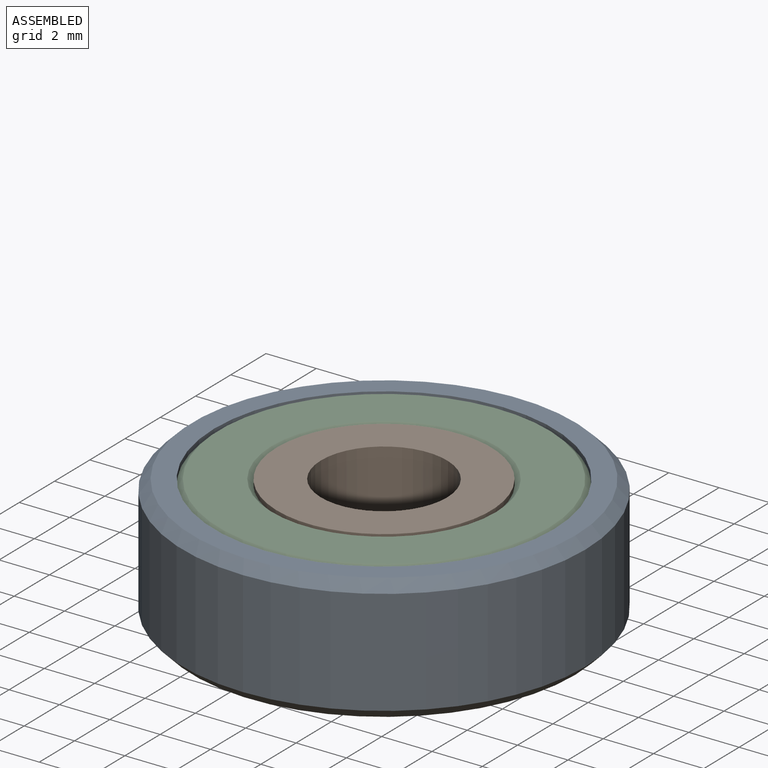
[diagram: assembled view]
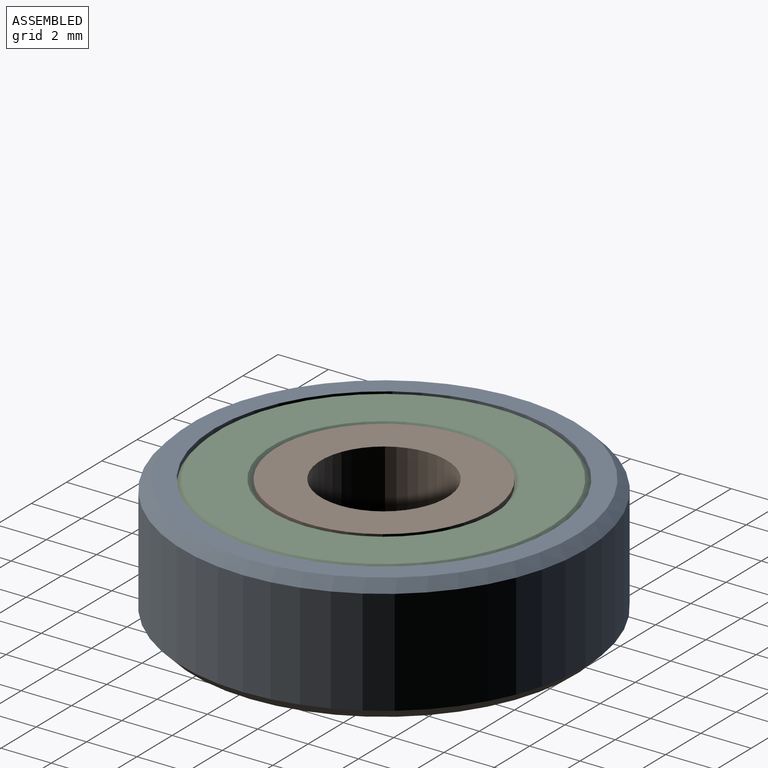
[diagram: assembled view, second angle]
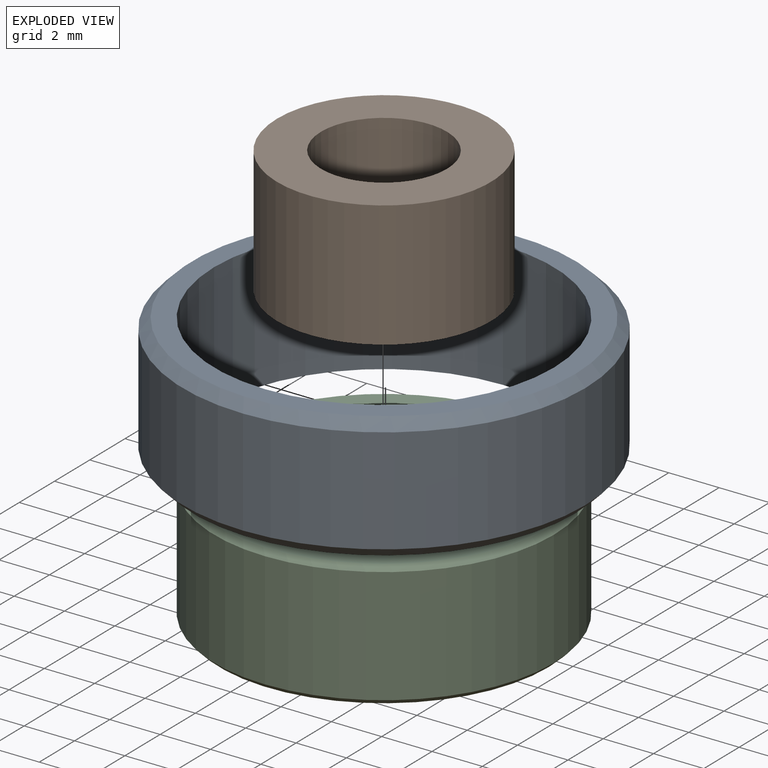
[diagram: exploded view]
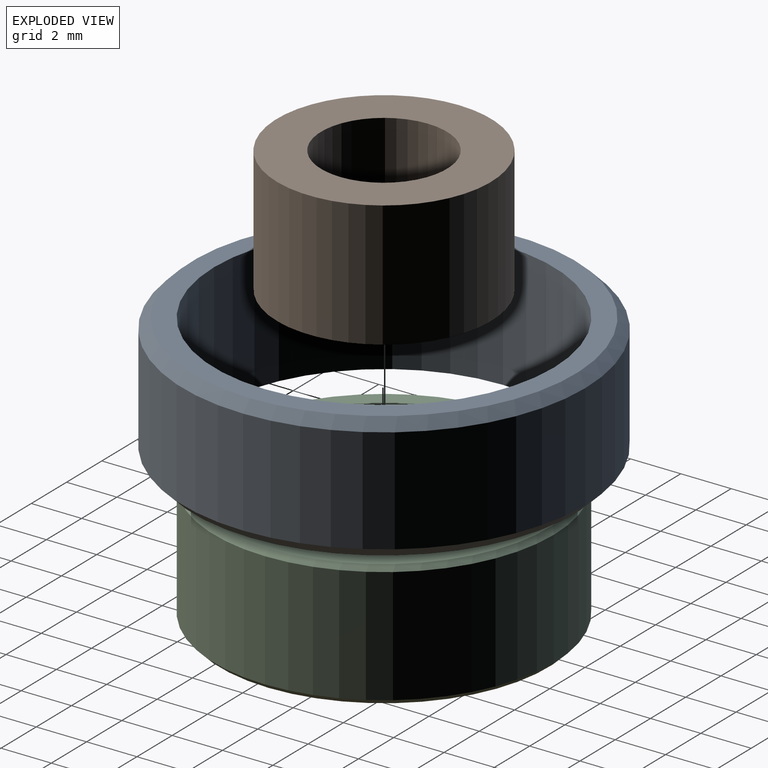
[diagram: exploded view, second angle]
ASSEMBLY  parts=3 mates=2
PART A: 6 faces, bbox 16x16x5 mm
  f0: plane 15.2x15.2mm, normal (0,0,1), area 38.3mm2, adj f3,f5
  f1: cylinder r=8mm len=16mm, axis (0,0,-1), area 211.1mm2, adj f4,f5
  f2: plane 15.2x15.2mm, normal (0,0,-1), area 38.3mm2, adj f3,f4
  f3: cylinder r=6.75mm len=13.5mm, axis (0,0,-1), area 212.1mm2, adj f0,f2
  f4: cone r=7.6mm half-angle=45deg, axis (0,0,1), area 27.7mm2, adj f1,f2
  f5: cone r=8mm half-angle=45deg, axis (0,0,-1), area 27.7mm2, adj f0,f1
PART B: 4 faces, bbox 8.5x8.5x5 mm
  f0: plane 8.5x8.5mm, normal (0,0,1), area 37.1mm2, adj f1,f3
  f1: cylinder r=4.25mm len=8.5mm, axis (0,0,-1), area 133.5mm2, adj f0,f2
  f2: plane 8.5x8.5mm, normal (0,0,-1), area 37.1mm2, adj f1,f3
  f3: cylinder r=2.5mm len=5mm, axis (0,0,-1), area 78.5mm2, adj f0,f2
PART C: 8 faces, bbox 13.5x13.5x5 mm
  f0: plane 13.1x13.1mm, normal (0,0,1), area 72.6mm2, adj f6,f7
  f1: cylinder r=6.75mm len=13.5mm, axis (0,0,-1), area 195.1mm2, adj f5,f7
  f2: plane 13.1x13.1mm, normal (0,0,-1), area 72.6mm2, adj f4,f5
  f3: cylinder r=4.25mm len=8.5mm, axis (0,0,-1), area 122.8mm2, adj f4,f6
  f4: cone r=4.25mm half-angle=45deg, axis (0,0,-1), area 7.7mm2, adj f2,f3
  f5: cone r=6.55mm half-angle=45deg, axis (0,0,1), area 11.8mm2, adj f1,f2
  f6: cone r=4.45mm half-angle=45deg, axis (0,0,1), area 7.7mm2, adj f0,f3
  f7: cone r=6.75mm half-angle=45deg, axis (0,0,-1), area 11.8mm2, adj f0,f1
PLACE A t=(-0.74,-1.1,-1.01)mm
PLACE B t=(-0.74,-1.1,-1.01)mm
PLACE C t=(-0.74,-1.1,-1.01)mm
MATE fastened C.f1 <-> A.f1  axis (0,0,-1) through (-0.74,-1.1,-1.01)mm
MATE revolute B.f1 <-> C.f1  axis (0,0,-1) through (-0.74,-1.1,-1.01)mm
